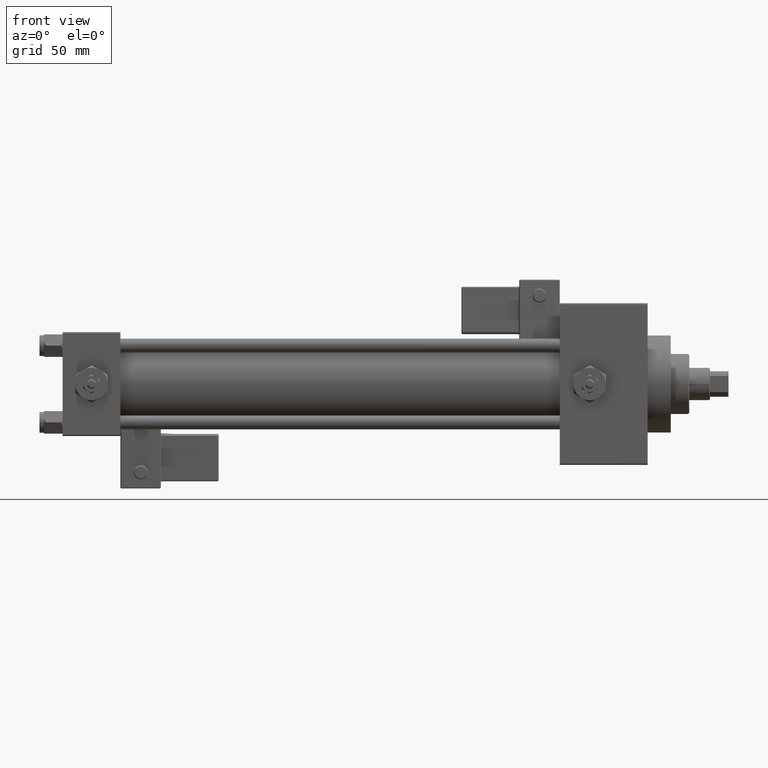
[diagram: clean part render]
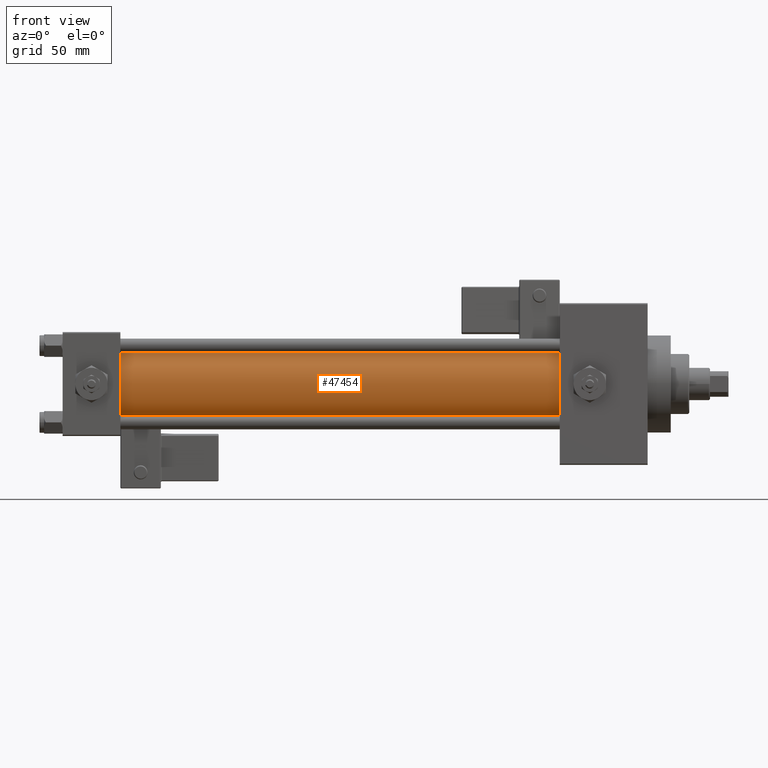
[diagram: same view with one face highlighted and labeled with its STEP entity id]
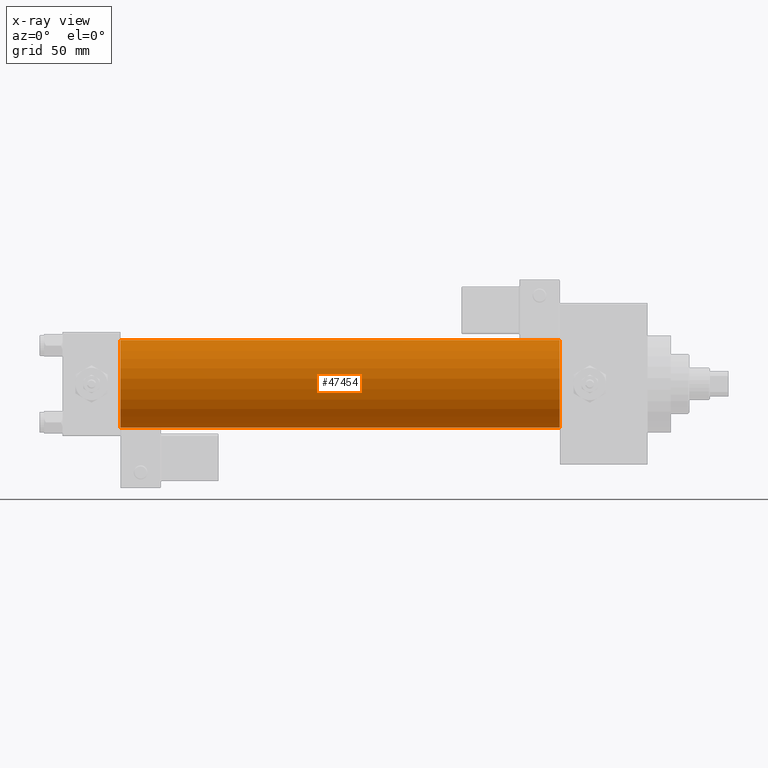
[diagram: x-ray of the same camera — body ghosted, the highlighted face saturated]
A machine part, front view. The second image highlights one B-rep face of the part: STEP entity #47454.
The next image is the same camera in x-ray: the body ghosted, the highlighted face saturated — about 0% of this face is hidden behind the body in this view.
In plain terms, the highlighted cylindrical surface (partial cylindrical patch) has radius 19 mm, axis along (-1, -0, -0).
Its self-contained STEP definition (entity closure, byte-faithful):
#2135 = DIRECTION ( 'NONE',  ( -1.000000000000000000, -0.000000000000000000, -0.000000000000000000 ) ) ;
#3144 = DIRECTION ( 'NONE',  ( 0.000000000000000000, 0.000000000000000000, -1.000000000000000000 ) ) ;
#4159 = ORIENTED_EDGE ( 'NONE', *, *, #14079, .F. ) ;
#4411 = CARTESIAN_POINT ( 'NONE',  ( 215.0000000000000000, -2.752562955852396712E-16, -19.00000000000000000 ) ) ;
#4847 = VERTEX_POINT ( 'NONE', #4411 ) ;
#6762 = CARTESIAN_POINT ( 'NONE',  ( 215.0000000000000000, -2.602085213965210642E-15, 0.000000000000000000 ) ) ;
#7058 = FACE_OUTER_BOUND ( 'NONE', #19445, .T. ) ;
#7866 = VECTOR ( 'NONE', #2135, 1000.000000000000000 ) ;
#8938 = CARTESIAN_POINT ( 'NONE',  ( 215.0000000000000000, -2.602085213965210642E-15, 19.00000000000000000 ) ) ;
#9469 = ORIENTED_EDGE ( 'NONE', *, *, #15321, .T. ) ;
#9675 = CARTESIAN_POINT ( 'NONE',  ( 215.0000000000000000, -2.752562955852396712E-16, -19.00000000000000000 ) ) ;
#9921 = CIRCLE ( 'NONE', #48914, 19.00000000000000000 ) ;
#10781 = CIRCLE ( 'NONE', #43911, 19.00000000000000000 ) ;
#11187 = DIRECTION ( 'NONE',  ( 1.000000000000000000, 0.000000000000000000, 0.000000000000000000 ) ) ;
#11791 = CARTESIAN_POINT ( 'NONE',  ( 24.99999999999999289, -2.752562955852396712E-16, -19.00000000000000000 ) ) ;
#14079 = EDGE_CURVE ( 'NONE', #4847, #42065, #45229, .T. ) ;
#14513 = DIRECTION ( 'NONE',  ( 0.000000000000000000, 0.000000000000000000, 1.000000000000000000 ) ) ;
#15321 = EDGE_CURVE ( 'NONE', #38368, #21137, #20629, .T. ) ;
#15880 = CARTESIAN_POINT ( 'NONE',  ( 24.99999999999999289, -2.602085213965210642E-15, 19.00000000000000000 ) ) ;
#15901 = CYLINDRICAL_SURFACE ( 'NONE', #15943, 19.00000000000000000 ) ;
#15943 = AXIS2_PLACEMENT_3D ( 'NONE', #19273, #23170, #43401 ) ;
#19273 = CARTESIAN_POINT ( 'NONE',  ( 215.0000000000000000, -2.602085213965210642E-15, 0.000000000000000000 ) ) ;
#19445 = EDGE_LOOP ( 'NONE', ( #4159, #34537, #9469, #45426 ) ) ;
#20629 = LINE ( 'NONE', #8938, #21167 ) ;
#21137 = VERTEX_POINT ( 'NONE', #15880 ) ;
#21167 = VECTOR ( 'NONE', #33083, 1000.000000000000000 ) ;
#23170 = DIRECTION ( 'NONE',  ( -1.000000000000000000, -0.000000000000000000, -0.000000000000000000 ) ) ;
#26460 = CARTESIAN_POINT ( 'NONE',  ( 24.99999999999999289, -2.602085213965210642E-15, 0.000000000000000000 ) ) ;
#33083 = DIRECTION ( 'NONE',  ( -1.000000000000000000, -0.000000000000000000, -0.000000000000000000 ) ) ;
#34537 = ORIENTED_EDGE ( 'NONE', *, *, #39046, .F. ) ;
#38368 = VERTEX_POINT ( 'NONE', #41178 ) ;
#39046 = EDGE_CURVE ( 'NONE', #38368, #4847, #9921, .T. ) ;
#39436 = EDGE_CURVE ( 'NONE', #21137, #42065, #10781, .T. ) ;
#41178 = CARTESIAN_POINT ( 'NONE',  ( 215.0000000000000000, -2.602085213965210642E-15, 19.00000000000000000 ) ) ;
#42065 = VERTEX_POINT ( 'NONE', #11791 ) ;
#43401 = DIRECTION ( 'NONE',  ( 0.000000000000000000, 0.000000000000000000, 1.000000000000000000 ) ) ;
#43911 = AXIS2_PLACEMENT_3D ( 'NONE', #26460, #45646, #14513 ) ;
#45229 = LINE ( 'NONE', #9675, #7866 ) ;
#45426 = ORIENTED_EDGE ( 'NONE', *, *, #39436, .T. ) ;
#45646 = DIRECTION ( 'NONE',  ( 1.000000000000000000, -0.000000000000000000, 0.000000000000000000 ) ) ;
#47454 = ADVANCED_FACE ( 'NONE', ( #7058 ), #15901, .T. ) ;
#48914 = AXIS2_PLACEMENT_3D ( 'NONE', #6762, #11187, #3144 ) ;